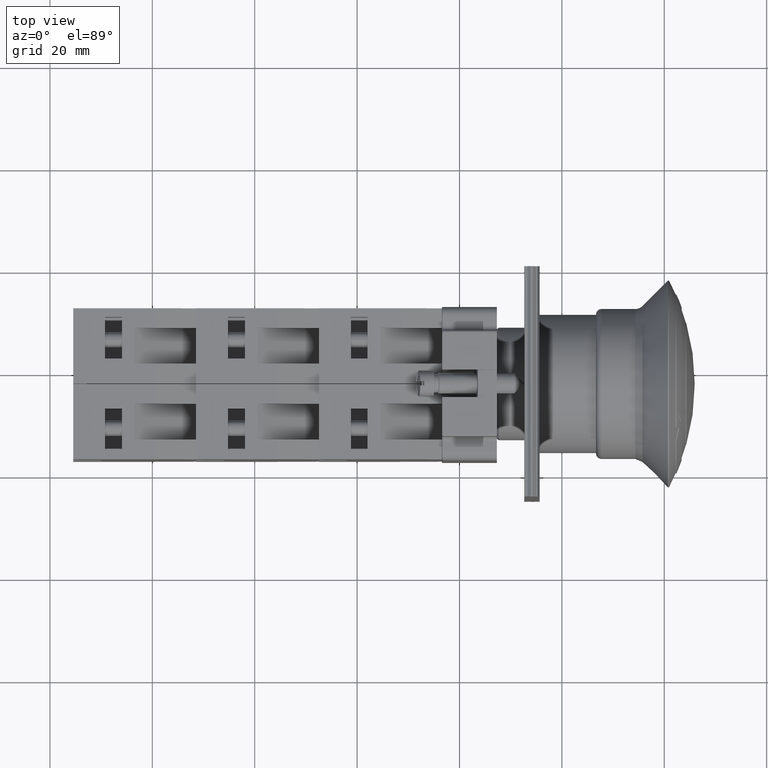
[diagram: clean part render]
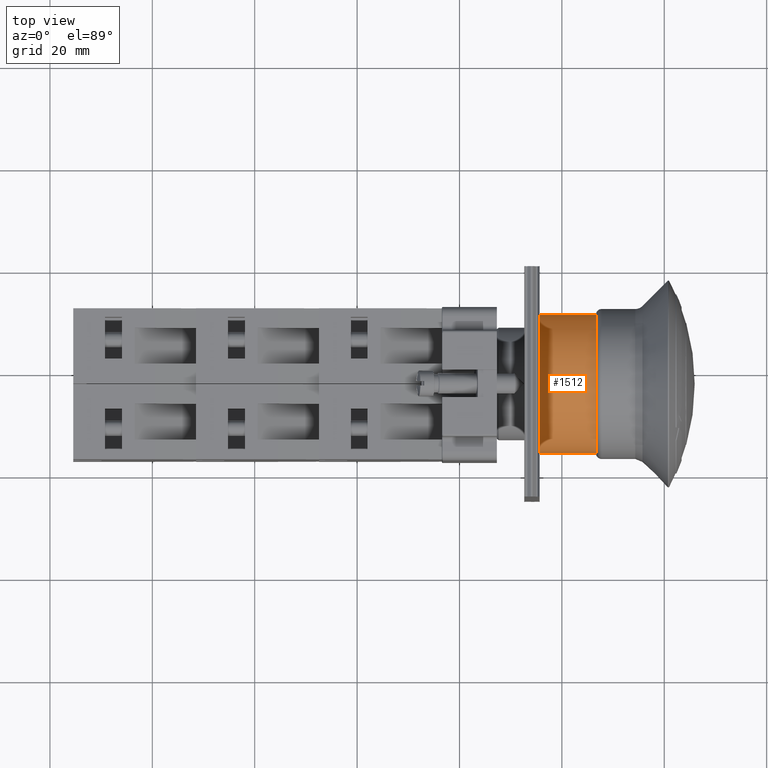
[diagram: same view with one face highlighted and labeled with its STEP entity id]
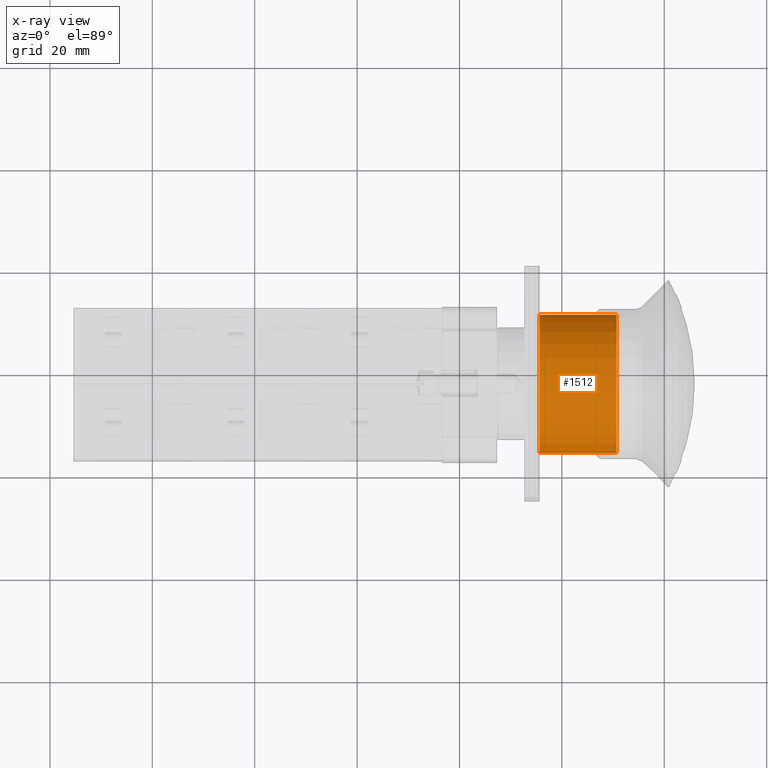
[diagram: x-ray of the same camera — body ghosted, the highlighted face saturated]
A machine part, top view. The second image highlights one B-rep face of the part: STEP entity #1512.
The next image is the same camera in x-ray: the body ghosted, the highlighted face saturated — about 0% of this face is hidden behind the body in this view.
In plain terms, the highlighted cylindrical surface (bore or boss wall) has radius 13.5 mm, axis along (1, -0, 0).
Its self-contained STEP definition (entity closure, byte-faithful):
#1478=CARTESIAN_POINT('',(15.661439613035352,11.299128933604655,0.0));
#1479=VERTEX_POINT('',#1478);
#1480=CARTESIAN_POINT('',(15.661439613035352,-2.200871066395349,0.0));
#1481=DIRECTION('',(1.0,1.504367E-013,0.0));
#1482=DIRECTION('',(-1.504367E-013,1.0,0.0));
#1483=AXIS2_PLACEMENT_3D('',#1480,#1481,#1482);
#1484=CIRCLE('',#1483,13.500000000000004);
#1485=EDGE_CURVE('',#1479,#1479,#1484,.T.);
#1493=CARTESIAN_POINT('',(28.661439613035355,-2.200871066395349,0.0));
#1494=DIRECTION('',(1.0,-3.885962E-018,0.0));
#1495=DIRECTION('',(-1.504367E-013,1.0,0.0));
#1496=AXIS2_PLACEMENT_3D('',#1493,#1494,#1495);
#1497=CYLINDRICAL_SURFACE('',#1496,13.500000000000005);
#1498=ORIENTED_EDGE('',*,*,#1485,.T.);
#1499=EDGE_LOOP('',(#1498));
#1500=FACE_OUTER_BOUND('',#1499,.T.);
#1501=CARTESIAN_POINT('',(30.661439613035352,11.299128933604655,0.0));
#1502=VERTEX_POINT('',#1501);
#1503=CARTESIAN_POINT('',(30.661439613035352,-2.200871066395349,0.0));
#1504=DIRECTION('',(1.0,1.504367E-013,0.0));
#1505=DIRECTION('',(-1.504367E-013,1.0,0.0));
#1506=AXIS2_PLACEMENT_3D('',#1503,#1504,#1505);
#1507=CIRCLE('',#1506,13.500000000000004);
#1508=EDGE_CURVE('',#1502,#1502,#1507,.T.);
#1509=ORIENTED_EDGE('',*,*,#1508,.F.);
#1510=EDGE_LOOP('',(#1509));
#1511=FACE_BOUND('',#1510,.T.);
#1512=ADVANCED_FACE('',(#1500,#1511),#1497,.T.);